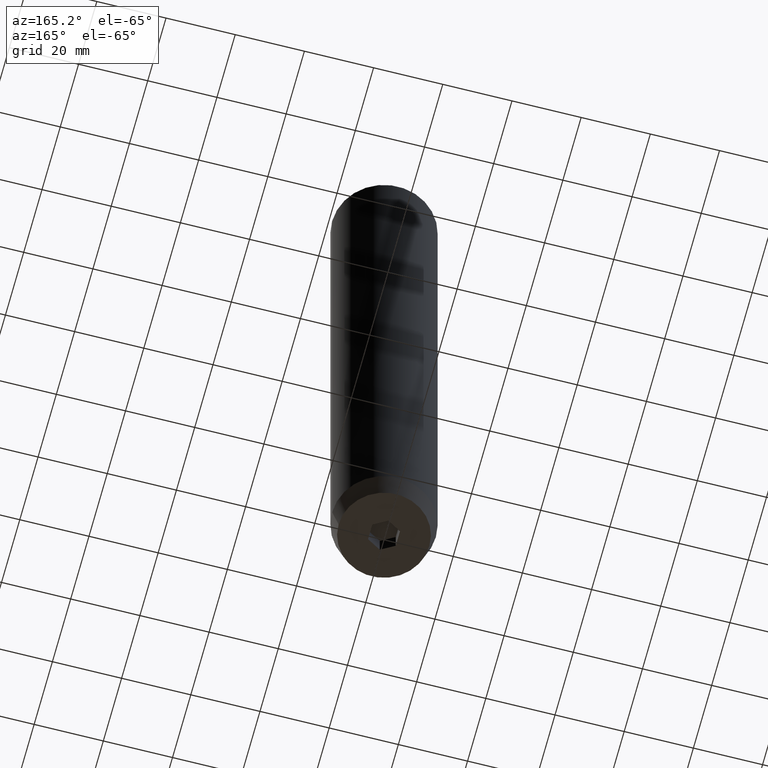
[diagram: clean part render]
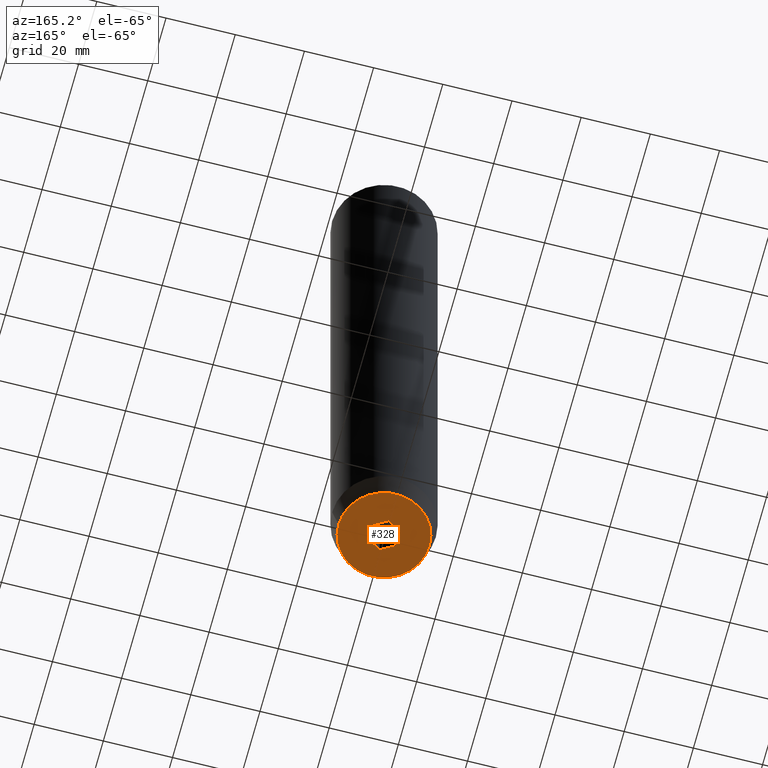
[diagram: same view with one face highlighted and labeled with its STEP entity id]
A machine part, auxiliary view. The second image highlights one B-rep face of the part: STEP entity #328.
In plain terms, the highlighted planar face has unit normal (0, 0, -1).
Its self-contained STEP definition (entity closure, byte-faithful):
#5 = CARTESIAN_POINT ( 'NONE',  ( 1.999999999999999556, -3.464101615137754386, -200.0000000000000000 ) ) ;
#20 = ORIENTED_EDGE ( 'NONE', *, *, #557, .F. ) ;
#25 = DIRECTION ( 'NONE',  ( -0.8660254037844387076, 0.4999999999999997224, 0.000000000000000000 ) ) ;
#30 = AXIS2_PLACEMENT_3D ( 'NONE', #36, #421, #137 ) ;
#36 = CARTESIAN_POINT ( 'NONE',  ( 0.000000000000000000, 13.12435565298213369, -200.0000000000000000 ) ) ;
#65 = DIRECTION ( 'NONE',  ( 0.000000000000000000, -1.000000000000000000, 0.000000000000000000 ) ) ;
#98 = EDGE_CURVE ( 'NONE', #353, #270, #517, .T. ) ;
#99 = CARTESIAN_POINT ( 'NONE',  ( 4.000000000000000000, -2.309401076758503368, -200.0000000000000000 ) ) ;
#105 = CIRCLE ( 'NONE', #368, 13.12435565298213369 ) ;
#110 = CARTESIAN_POINT ( 'NONE',  ( -2.000000000000000000, 3.464101615137755275, -200.0000000000000000 ) ) ;
#121 = DIRECTION ( 'NONE',  ( 1.000000000000000000, 0.000000000000000000, 0.000000000000000000 ) ) ;
#127 = ORIENTED_EDGE ( 'NONE', *, *, #396, .F. ) ;
#135 = CARTESIAN_POINT ( 'NONE',  ( -4.000000000000001776, -2.309401076758503368, -200.0000000000000000 ) ) ;
#137 = DIRECTION ( 'NONE',  ( -1.000000000000000000, 0.000000000000000000, -0.000000000000000000 ) ) ;
#141 = DIRECTION ( 'NONE',  ( -0.8660254037844385966, -0.4999999999999998890, 0.000000000000000000 ) ) ;
#154 = CIRCLE ( 'NONE', #547, 13.12435565298213369 ) ;
#167 = VERTEX_POINT ( 'NONE', #452 ) ;
#169 = FACE_BOUND ( 'NONE', #566, .T. ) ;
#176 = PLANE ( 'NONE',  #30 ) ;
#185 = EDGE_CURVE ( 'NONE', #167, #318, #105, .T. ) ;
#195 = EDGE_CURVE ( 'NONE', #270, #489, #558, .T. ) ;
#197 = DIRECTION ( 'NONE',  ( 3.755786496842898071E-16, 1.000000000000000000, 0.000000000000000000 ) ) ;
#217 = VERTEX_POINT ( 'NONE', #498 ) ;
#219 = CARTESIAN_POINT ( 'NONE',  ( -13.12435565298213369, 1.722120106425316888E-15, -200.0000000000000000 ) ) ;
#223 = VECTOR ( 'NONE', #463, 999.9999999999998863 ) ;
#248 = CARTESIAN_POINT ( 'NONE',  ( 0.000000000000000000, 0.000000000000000000, -200.0000000000000000 ) ) ;
#250 = LINE ( 'NONE', #5, #484 ) ;
#256 = VECTOR ( 'NONE', #25, 1000.000000000000114 ) ;
#258 = DIRECTION ( 'NONE',  ( 0.8660254037844387076, -0.4999999999999999445, 0.000000000000000000 ) ) ;
#261 = ORIENTED_EDGE ( 'NONE', *, *, #618, .F. ) ;
#270 = VERTEX_POINT ( 'NONE', #620 ) ;
#283 = VECTOR ( 'NONE', #258, 999.9999999999998863 ) ;
#290 = DIRECTION ( 'NONE',  ( 1.000000000000000000, 0.000000000000000000, 0.000000000000000000 ) ) ;
#317 = EDGE_CURVE ( 'NONE', #217, #353, #565, .T. ) ;
#318 = VERTEX_POINT ( 'NONE', #219 ) ;
#328 = ADVANCED_FACE ( 'NONE', ( #169, #479 ), #176, .T. ) ;
#346 = ORIENTED_EDGE ( 'NONE', *, *, #185, .F. ) ;
#353 = VERTEX_POINT ( 'NONE', #135 ) ;
#357 = CARTESIAN_POINT ( 'NONE',  ( 4.000000000000000000, 0.000000000000000000, -200.0000000000000000 ) ) ;
#368 = AXIS2_PLACEMENT_3D ( 'NONE', #248, #548, #121 ) ;
#396 = EDGE_CURVE ( 'NONE', #318, #167, #154, .T. ) ;
#397 = CARTESIAN_POINT ( 'NONE',  ( -4.000000000000000888, 1.502314598737159623E-15, -200.0000000000000000 ) ) ;
#412 = CARTESIAN_POINT ( 'NONE',  ( 2.000000000000000000, 3.464101615137755275, -200.0000000000000000 ) ) ;
#419 = EDGE_LOOP ( 'NONE', ( #346, #127 ) ) ;
#421 = DIRECTION ( 'NONE',  ( 0.000000000000000000, 0.000000000000000000, -1.000000000000000000 ) ) ;
#433 = CARTESIAN_POINT ( 'NONE',  ( 0.000000000000000000, 0.000000000000000000, -200.0000000000000000 ) ) ;
#441 = ORIENTED_EDGE ( 'NONE', *, *, #317, .F. ) ;
#451 = LINE ( 'NONE', #412, #283 ) ;
#452 = CARTESIAN_POINT ( 'NONE',  ( 13.12435565298213369, 0.000000000000000000, -200.0000000000000000 ) ) ;
#455 = LINE ( 'NONE', #357, #485 ) ;
#463 = DIRECTION ( 'NONE',  ( 0.8660254037844387076, 0.4999999999999999445, 0.000000000000000000 ) ) ;
#475 = EDGE_CURVE ( 'NONE', #521, #217, #250, .T. ) ;
#477 = ORIENTED_EDGE ( 'NONE', *, *, #98, .F. ) ;
#479 = FACE_OUTER_BOUND ( 'NONE', #419, .T. ) ;
#484 = VECTOR ( 'NONE', #141, 1000.000000000000227 ) ;
#485 = VECTOR ( 'NONE', #65, 1000.000000000000000 ) ;
#489 = VERTEX_POINT ( 'NONE', #497 ) ;
#497 = CARTESIAN_POINT ( 'NONE',  ( 4.336808689942017736E-16, 4.618802153517006737, -200.0000000000000000 ) ) ;
#498 = CARTESIAN_POINT ( 'NONE',  ( 8.673617379884035472E-16, -4.618802153517004960, -200.0000000000000000 ) ) ;
#510 = VECTOR ( 'NONE', #197, 1000.000000000000000 ) ;
#517 = LINE ( 'NONE', #397, #510 ) ;
#521 = VERTEX_POINT ( 'NONE', #99 ) ;
#528 = VERTEX_POINT ( 'NONE', #633 ) ;
#547 = AXIS2_PLACEMENT_3D ( 'NONE', #433, #630, #290 ) ;
#548 = DIRECTION ( 'NONE',  ( -0.000000000000000000, -0.000000000000000000, 1.000000000000000000 ) ) ;
#557 = EDGE_CURVE ( 'NONE', #489, #528, #451, .T. ) ;
#558 = LINE ( 'NONE', #110, #223 ) ;
#565 = LINE ( 'NONE', #576, #256 ) ;
#566 = EDGE_LOOP ( 'NONE', ( #634, #477, #441, #636, #261, #20 ) ) ;
#576 = CARTESIAN_POINT ( 'NONE',  ( -1.999999999999999112, -3.464101615137755275, -200.0000000000000000 ) ) ;
#618 = EDGE_CURVE ( 'NONE', #528, #521, #455, .T. ) ;
#620 = CARTESIAN_POINT ( 'NONE',  ( -4.000000000000000000, 2.309401076758504257, -200.0000000000000000 ) ) ;
#630 = DIRECTION ( 'NONE',  ( -0.000000000000000000, -0.000000000000000000, 1.000000000000000000 ) ) ;
#633 = CARTESIAN_POINT ( 'NONE',  ( 4.000000000000000000, 2.309401076758504257, -200.0000000000000000 ) ) ;
#634 = ORIENTED_EDGE ( 'NONE', *, *, #195, .F. ) ;
#636 = ORIENTED_EDGE ( 'NONE', *, *, #475, .F. ) ;